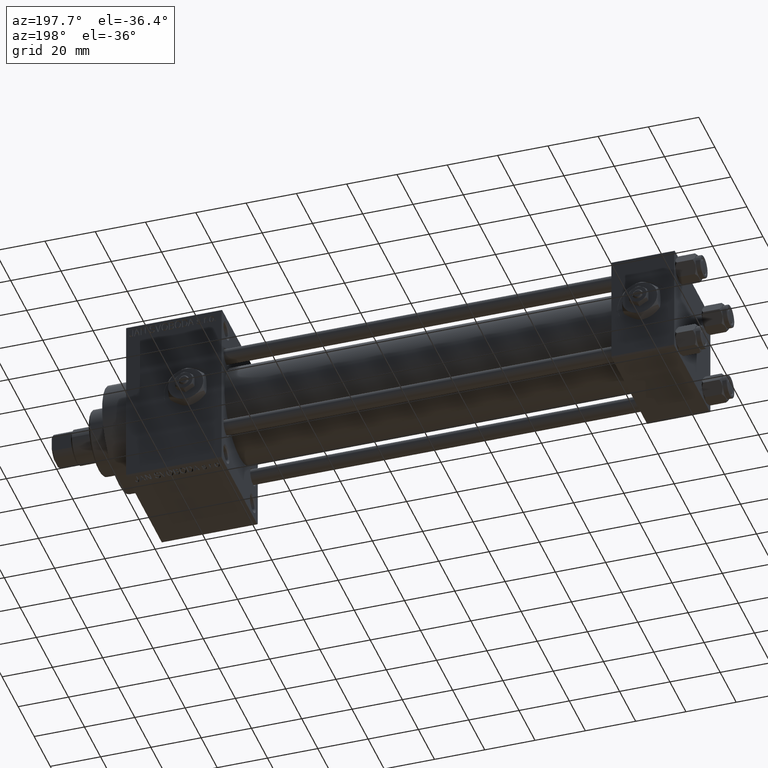
[diagram: clean part render]
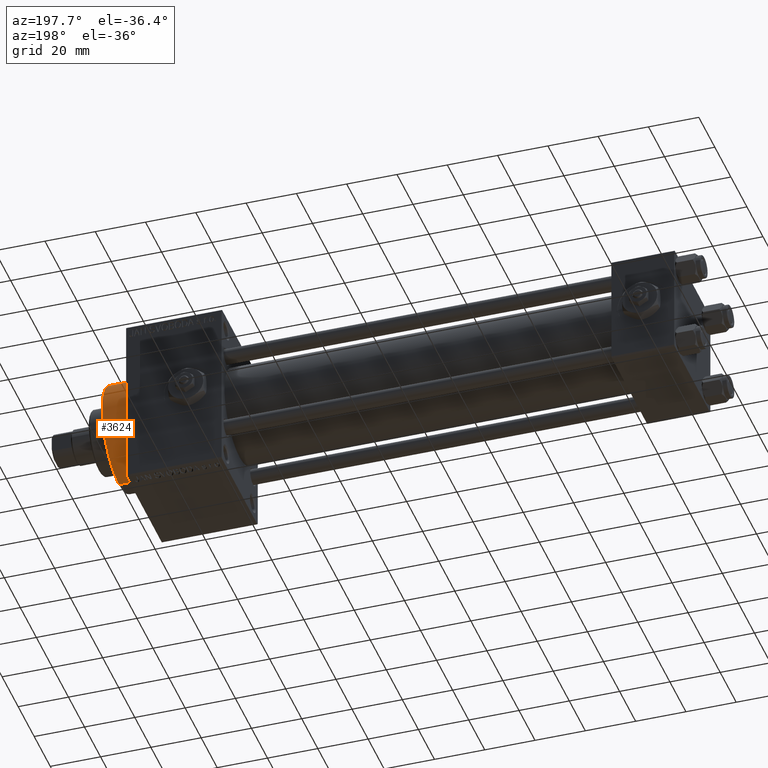
[diagram: same view with one face highlighted and labeled with its STEP entity id]
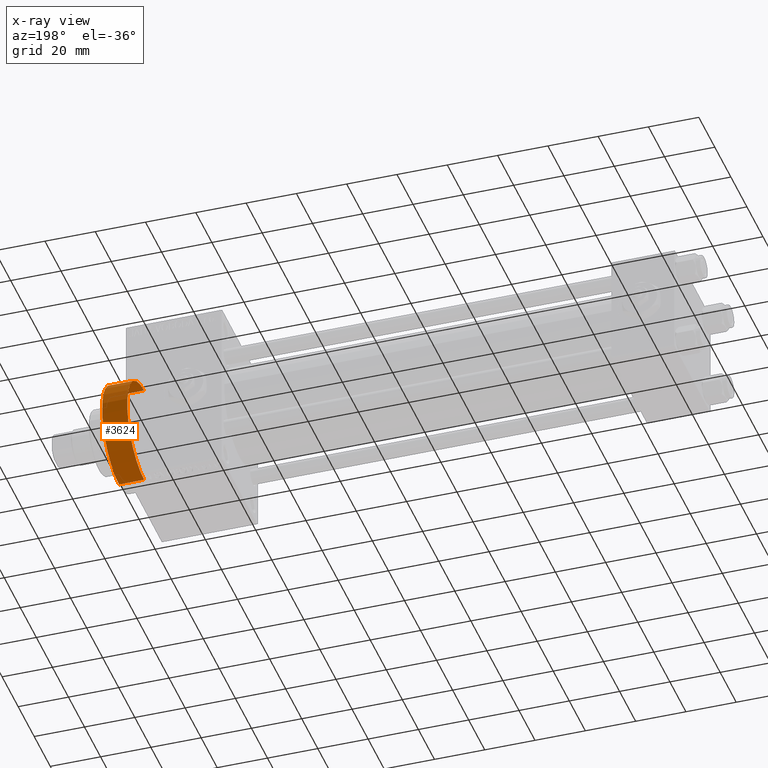
[diagram: x-ray of the same camera — body ghosted, the highlighted face saturated]
A machine part, auxiliary view. The second image highlights one B-rep face of the part: STEP entity #3624.
The next image is the same camera in x-ray: the body ghosted, the highlighted face saturated — about 1% of this face is hidden behind the body in this view.
In plain terms, the highlighted cylindrical surface (partial cylindrical patch) has radius 21 mm, axis along (-1, -0, -0).
Its self-contained STEP definition (entity closure, byte-faithful):
#1347 = AXIS2_PLACEMENT_3D ( 'NONE', #31158, #46121, #11713 ) ;
#1635 = FACE_OUTER_BOUND ( 'NONE', #23642, .T. ) ;
#2557 = VERTEX_POINT ( 'NONE', #8582 ) ;
#2568 = ORIENTED_EDGE ( 'NONE', *, *, #17057, .F. ) ;
#2893 = DIRECTION ( 'NONE',  ( -1.000000000000000000, -0.000000000000000000, -0.000000000000000000 ) ) ;
#2965 = CIRCLE ( 'NONE', #1347, 21.00000000000000000 ) ;
#3465 = LINE ( 'NONE', #6991, #9044 ) ;
#3624 = ADVANCED_FACE ( 'NONE', ( #1635 ), #11053, .T. ) ;
#4407 = CIRCLE ( 'NONE', #13965, 21.00000000000000000 ) ;
#5176 = EDGE_CURVE ( 'NONE', #34236, #2557, #3465, .T. ) ;
#5658 = ORIENTED_EDGE ( 'NONE', *, *, #5176, .F. ) ;
#6820 = DIRECTION ( 'NONE',  ( 0.000000000000000000, 0.000000000000000000, 1.000000000000000000 ) ) ;
#6991 = CARTESIAN_POINT ( 'NONE',  ( 228.0000000000000000, 0.000000000000000000, 21.00000000000000000 ) ) ;
#8582 = CARTESIAN_POINT ( 'NONE',  ( 218.0000000000000000, 0.000000000000000000, 21.00000000000000000 ) ) ;
#9044 = VECTOR ( 'NONE', #25194, 1000.000000000000000 ) ;
#9197 = CARTESIAN_POINT ( 'NONE',  ( 218.0000000000000000, 0.000000000000000000, 0.000000000000000000 ) ) ;
#10205 = VECTOR ( 'NONE', #2893, 1000.000000000000000 ) ;
#11053 = CYLINDRICAL_SURFACE ( 'NONE', #11412, 21.00000000000000000 ) ;
#11412 = AXIS2_PLACEMENT_3D ( 'NONE', #18291, #13627, #6820 ) ;
#11713 = DIRECTION ( 'NONE',  ( 0.000000000000000000, 0.000000000000000000, -1.000000000000000000 ) ) ;
#13627 = DIRECTION ( 'NONE',  ( -1.000000000000000000, -0.000000000000000000, -0.000000000000000000 ) ) ;
#13965 = AXIS2_PLACEMENT_3D ( 'NONE', #9197, #24400, #39621 ) ;
#14130 = LINE ( 'NONE', #18358, #10205 ) ;
#17057 = EDGE_CURVE ( 'NONE', #40037, #34236, #2965, .T. ) ;
#18291 = CARTESIAN_POINT ( 'NONE',  ( 228.0000000000000000, 0.000000000000000000, 0.000000000000000000 ) ) ;
#18358 = CARTESIAN_POINT ( 'NONE',  ( 228.0000000000000000, 2.571758278209441661E-15, -21.00000000000000000 ) ) ;
#18588 = EDGE_CURVE ( 'NONE', #40037, #28615, #14130, .T. ) ;
#20723 = CARTESIAN_POINT ( 'NONE',  ( 218.0000000000000000, 2.571758278209441661E-15, -21.00000000000000000 ) ) ;
#23642 = EDGE_LOOP ( 'NONE', ( #2568, #23734, #28686, #5658 ) ) ;
#23734 = ORIENTED_EDGE ( 'NONE', *, *, #18588, .T. ) ;
#24400 = DIRECTION ( 'NONE',  ( 1.000000000000000000, 0.000000000000000000, 0.000000000000000000 ) ) ;
#25194 = DIRECTION ( 'NONE',  ( -1.000000000000000000, -0.000000000000000000, -0.000000000000000000 ) ) ;
#28615 = VERTEX_POINT ( 'NONE', #20723 ) ;
#28686 = ORIENTED_EDGE ( 'NONE', *, *, #47172, .T. ) ;
#31158 = CARTESIAN_POINT ( 'NONE',  ( 228.0000000000000000, 0.000000000000000000, 0.000000000000000000 ) ) ;
#34236 = VERTEX_POINT ( 'NONE', #34779 ) ;
#34779 = CARTESIAN_POINT ( 'NONE',  ( 228.0000000000000000, 0.000000000000000000, 21.00000000000000000 ) ) ;
#35545 = CARTESIAN_POINT ( 'NONE',  ( 228.0000000000000000, 2.571758278209441661E-15, -21.00000000000000000 ) ) ;
#39621 = DIRECTION ( 'NONE',  ( 0.000000000000000000, 0.000000000000000000, -1.000000000000000000 ) ) ;
#40037 = VERTEX_POINT ( 'NONE', #35545 ) ;
#46121 = DIRECTION ( 'NONE',  ( 1.000000000000000000, 0.000000000000000000, 0.000000000000000000 ) ) ;
#47172 = EDGE_CURVE ( 'NONE', #28615, #2557, #4407, .T. ) ;